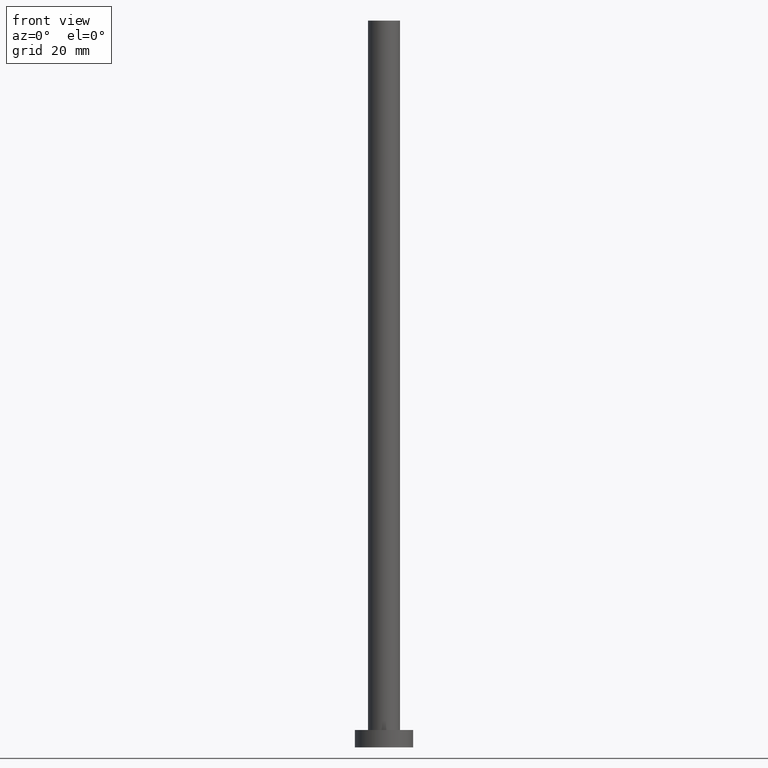
[diagram: clean part render]
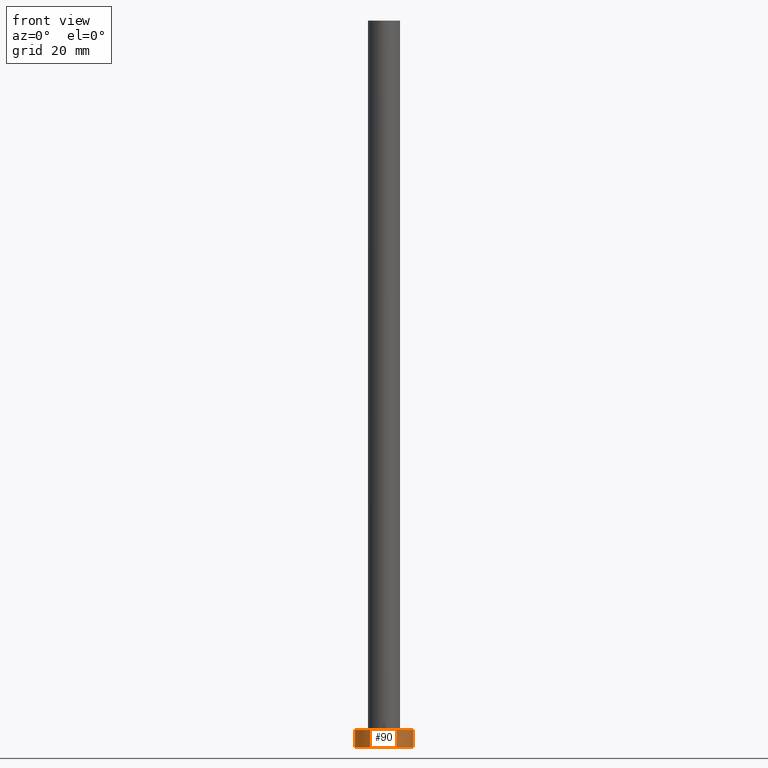
[diagram: same view with one face highlighted and labeled with its STEP entity id]
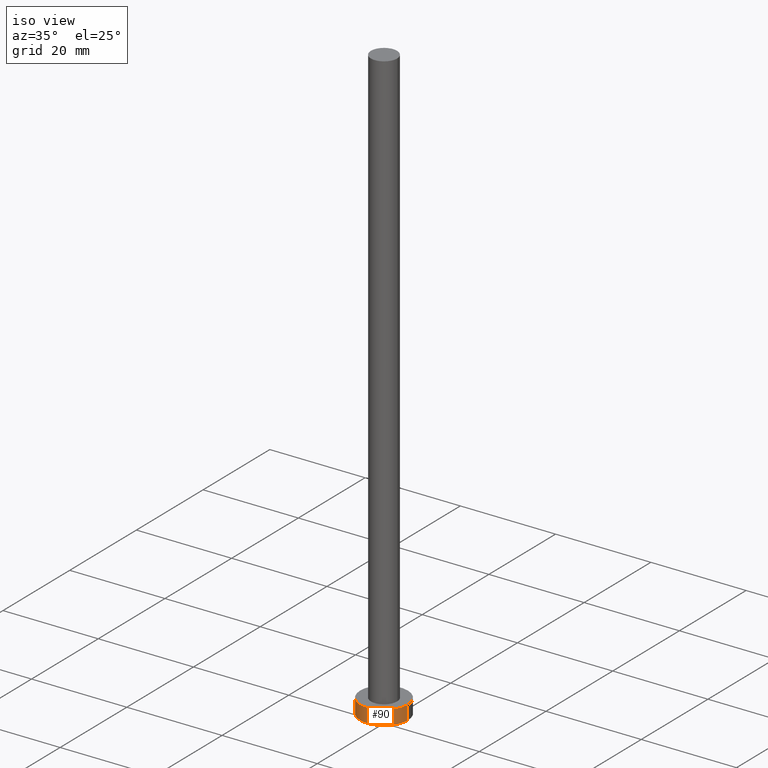
[diagram: same view with one face highlighted and labeled with its STEP entity id]
A machine part, front view. The second image highlights one B-rep face of the part: STEP entity #90.
A second angle (iso view) of the same face is appended — the face is thin or edge-on in the first view.
In plain terms, the highlighted cylindrical surface (edge-blend (fillet) strip) has radius 5 mm, axis along (-0, -0, -1).
Its self-contained STEP definition (entity closure, byte-faithful):
#16 = EDGE_CURVE ( 'NONE', #98, #120, #190, .T. ) ;
#17 = CARTESIAN_POINT ( 'NONE',  ( 5.000000000000000000, 6.123233995736766282E-16, 0.000000000000000000 ) ) ;
#22 = CARTESIAN_POINT ( 'NONE',  ( 5.000000000000000000, 6.123233995736766282E-16, 3.000000000000000000 ) ) ;
#36 = DIRECTION ( 'NONE',  ( -0.000000000000000000, -0.000000000000000000, -1.000000000000000000 ) ) ;
#37 = VECTOR ( 'NONE', #189, 1000.000000000000000 ) ;
#38 = EDGE_CURVE ( 'NONE', #98, #106, #101, .T. ) ;
#55 = AXIS2_PLACEMENT_3D ( 'NONE', #226, #105, #198 ) ;
#56 = VERTEX_POINT ( 'NONE', #17 ) ;
#60 = VECTOR ( 'NONE', #157, 1000.000000000000000 ) ;
#68 = EDGE_CURVE ( 'NONE', #120, #56, #229, .T. ) ;
#72 = CARTESIAN_POINT ( 'NONE',  ( -5.000000000000000000, 0.000000000000000000, 3.000000000000000000 ) ) ;
#74 = ORIENTED_EDGE ( 'NONE', *, *, #233, .F. ) ;
#90 = ADVANCED_FACE ( 'NONE', ( #104 ), #167, .T. ) ;
#98 = VERTEX_POINT ( 'NONE', #246 ) ;
#101 = CIRCLE ( 'NONE', #111, 5.000000000000000000 ) ;
#104 = FACE_OUTER_BOUND ( 'NONE', #130, .T. ) ;
#105 = DIRECTION ( 'NONE',  ( 0.000000000000000000, 0.000000000000000000, 1.000000000000000000 ) ) ;
#106 = VERTEX_POINT ( 'NONE', #217 ) ;
#109 = DIRECTION ( 'NONE',  ( -1.000000000000000000, 0.000000000000000000, 0.000000000000000000 ) ) ;
#111 = AXIS2_PLACEMENT_3D ( 'NONE', #146, #208, #220 ) ;
#120 = VERTEX_POINT ( 'NONE', #254 ) ;
#130 = EDGE_LOOP ( 'NONE', ( #74, #196, #140, #209 ) ) ;
#140 = ORIENTED_EDGE ( 'NONE', *, *, #16, .T. ) ;
#146 = CARTESIAN_POINT ( 'NONE',  ( 0.000000000000000000, 0.000000000000000000, 3.000000000000000000 ) ) ;
#157 = DIRECTION ( 'NONE',  ( -0.000000000000000000, -0.000000000000000000, -1.000000000000000000 ) ) ;
#167 = CYLINDRICAL_SURFACE ( 'NONE', #219, 5.000000000000000000 ) ;
#168 = CARTESIAN_POINT ( 'NONE',  ( 0.000000000000000000, 0.000000000000000000, 3.000000000000000000 ) ) ;
#189 = DIRECTION ( 'NONE',  ( -0.000000000000000000, -0.000000000000000000, -1.000000000000000000 ) ) ;
#190 = LINE ( 'NONE', #72, #60 ) ;
#196 = ORIENTED_EDGE ( 'NONE', *, *, #38, .F. ) ;
#198 = DIRECTION ( 'NONE',  ( 1.000000000000000000, 0.000000000000000000, 0.000000000000000000 ) ) ;
#204 = LINE ( 'NONE', #22, #37 ) ;
#208 = DIRECTION ( 'NONE',  ( 0.000000000000000000, 0.000000000000000000, 1.000000000000000000 ) ) ;
#209 = ORIENTED_EDGE ( 'NONE', *, *, #68, .T. ) ;
#217 = CARTESIAN_POINT ( 'NONE',  ( 5.000000000000000000, 6.123233995736766282E-16, 3.000000000000000000 ) ) ;
#219 = AXIS2_PLACEMENT_3D ( 'NONE', #168, #36, #109 ) ;
#220 = DIRECTION ( 'NONE',  ( 1.000000000000000000, 0.000000000000000000, 0.000000000000000000 ) ) ;
#226 = CARTESIAN_POINT ( 'NONE',  ( 0.000000000000000000, 0.000000000000000000, 0.000000000000000000 ) ) ;
#229 = CIRCLE ( 'NONE', #55, 5.000000000000000000 ) ;
#233 = EDGE_CURVE ( 'NONE', #106, #56, #204, .T. ) ;
#246 = CARTESIAN_POINT ( 'NONE',  ( -5.000000000000000000, 0.000000000000000000, 3.000000000000000000 ) ) ;
#254 = CARTESIAN_POINT ( 'NONE',  ( -5.000000000000000000, 0.000000000000000000, 0.000000000000000000 ) ) ;